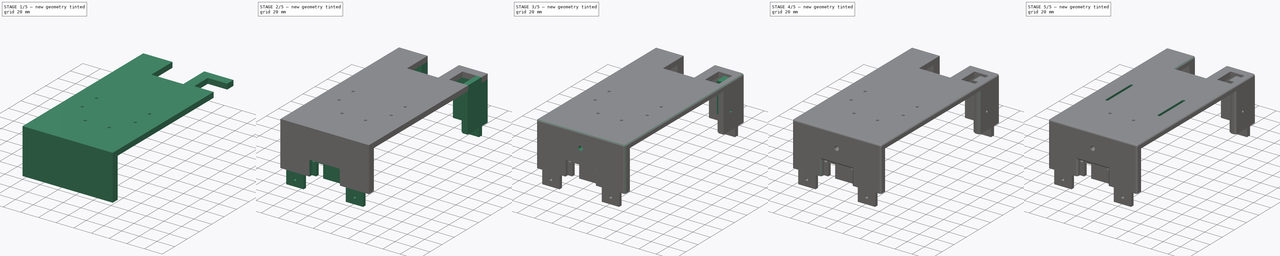
[diagram: build sequence overview — one tinted view per stage of 5, left to right]
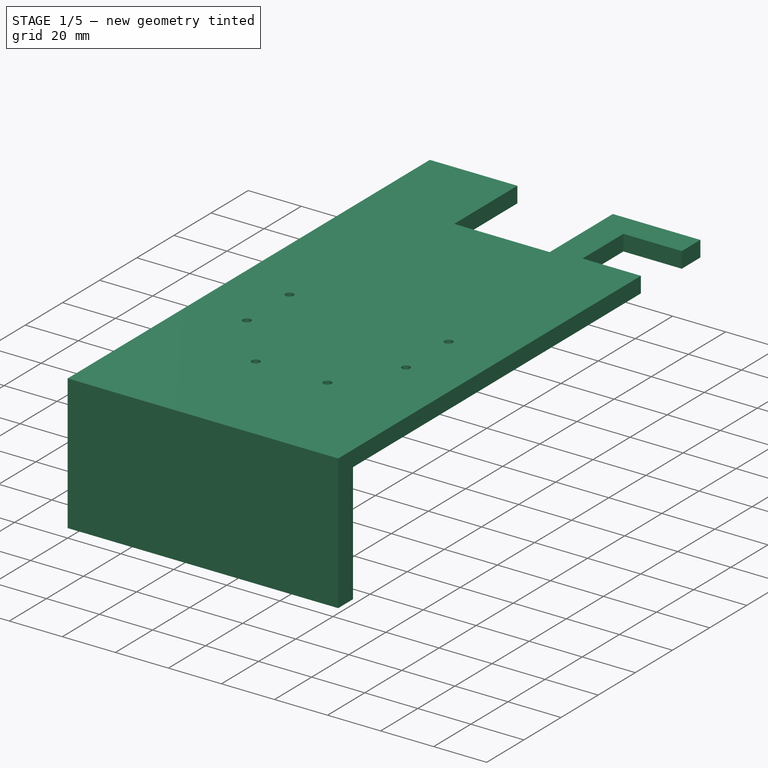
[diagram: stage 1 of 5 — iso view after this stage's code; geometry added in this stage tinted green]
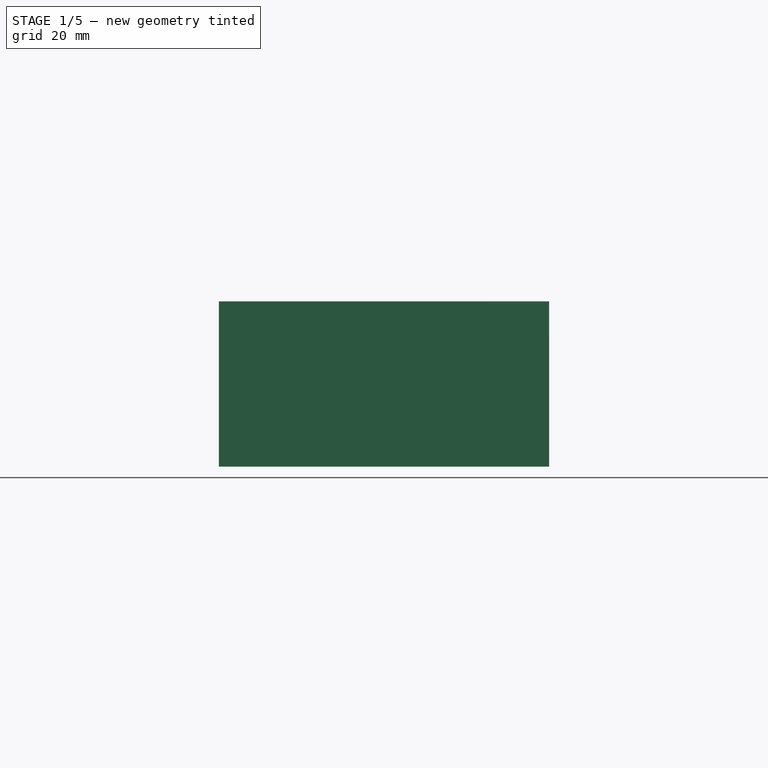
[diagram: stage 1 of 5 — front view after this stage's code; geometry added in this stage tinted green]
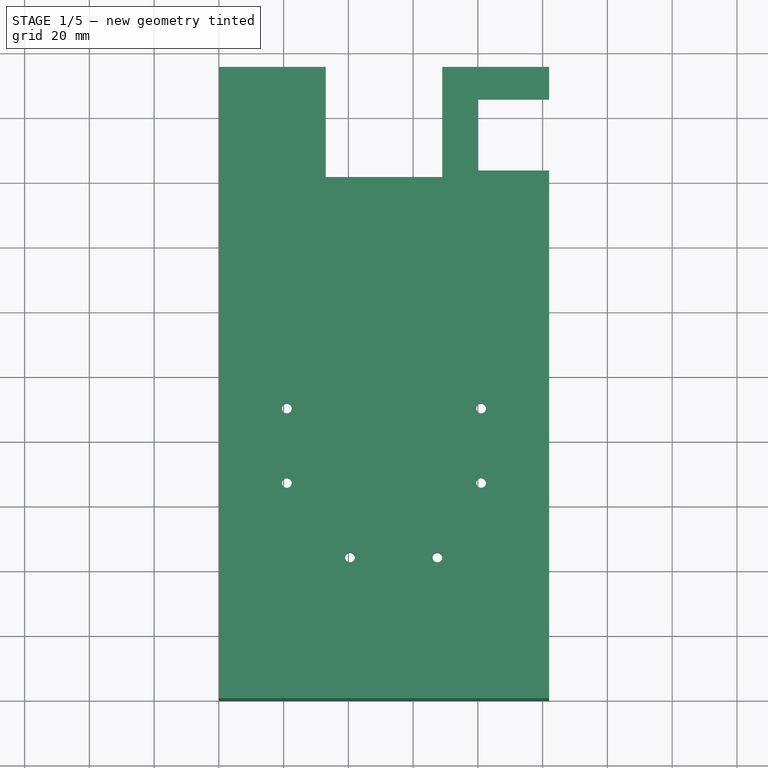
[diagram: stage 1 of 5 — top view after this stage's code; geometry added in this stage tinted green]
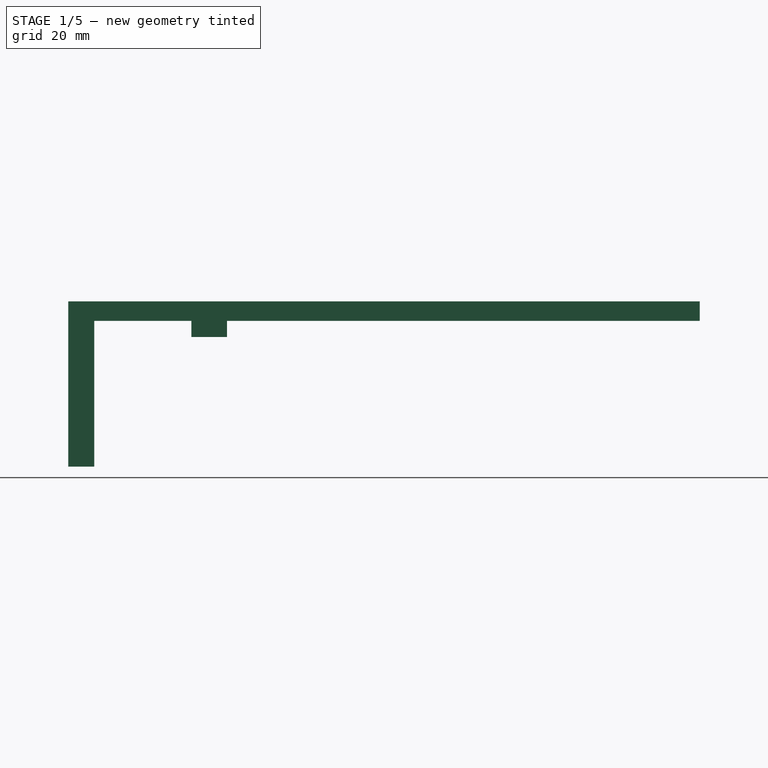
[diagram: stage 1 of 5 — right view after this stage's code; geometry added in this stage tinted green]
FCSTD DOCUMENT  (FreeCAD 0.20R29603 (Git))
Label: PipeScan Top
License: All rights reserved
LicenseURL: http://en.wikipedia.org/wiki/All_rights_reserved
objects: Sketcher::SketchObject×19, PartDesign::Fillet×14, PartDesign::Pocket×10, PartDesign::Pad×8, PartDesign::Body×1
note: 84 computed .brp shape members not serialized (recipe doc carries the construction recipe); baked Part::Feature solids carry a one-line shape summary decoded from their .brp

FEATURE [Sketcher::SketchObject] Sketch
  FullyConstrained = true
  MapMode = 5
  Support = -> [XY_Plane]
  sketch-geometry (8):
    g0: LineSegment StartX=0 StartY=0 StartZ=0 EndX=102 EndY=0 EndZ=0
    g1: LineSegment StartX=102 StartY=0 StartZ=0 EndX=102 EndY=195 EndZ=0
    g2: LineSegment StartX=102 StartY=195 StartZ=0 EndX=69 EndY=195 EndZ=0
    g3: LineSegment StartX=69 StartY=195 StartZ=0 EndX=69 EndY=161 EndZ=0
    g4: LineSegment StartX=69 StartY=161 StartZ=0 EndX=33 EndY=161 EndZ=0
    g5: LineSegment StartX=33 StartY=161 StartZ=0 EndX=33 EndY=195 EndZ=0
    g6: LineSegment StartX=33 StartY=195 StartZ=0 EndX=0 EndY=195 EndZ=0
    g7: LineSegment StartX=0 StartY=195 StartZ=0 EndX=0 EndY=0 EndZ=0
  constraints (23):
    c: Horizontal(g0)
    c: Coincident(g0,g1)
    c: Vertical(g1)
    c: Coincident(g1,g2)
    c: Horizontal(g2)
    c: Coincident(g2,g3)
    c: Vertical(g3)
    c: Coincident(g3,g4)
    c: Horizontal(g4)
    c: Coincident(g4,g5)
    c: Vertical(g5)
    c: Coincident(g5,g6)
    c: Horizontal(g6)
    c: Coincident(g6,g7)
    c: Coincident(g7,g0)
    c: Vertical(g7)
    c: Equal(g1,g7)
    c: Equal(g6,g2)
    c: DistanceY(g1,g1) = 195
    c: DistanceX(g0,g0) = 102
    c: DistanceX(g4,g4) = 36
    c: DistanceY(g3,g3) = 34
    c: Coincident(g0,g-1)
FEATURE [PartDesign::Pad] Pad  label="Estrutura"
  Direction = (0,0,1)
  Length = 6
  Length2 = 10
  Profile = -> Sketch
  ReferenceAxis = -> Sketch [N_Axis]
  Type = 0
FEATURE [Sketcher::SketchObject] Sketch001
  ExternalGeometry = -> [Pad]
  FullyConstrained = true
  MapMode = 5
  Placement = pos=(0,0,0) rot=(1,0,0;3.14159rad)
  Support = -> [Pad]
  sketch-geometry (8):
    g0: LineSegment StartX=35 StartY=-38 StartZ=0 EndX=46 EndY=-38 EndZ=0
    g1: LineSegment StartX=46 StartY=-38 StartZ=0 EndX=46 EndY=-49 EndZ=0
    g2: LineSegment StartX=46 StartY=-49 StartZ=0 EndX=35 EndY=-49 EndZ=0
    g3: LineSegment StartX=35 StartY=-49 StartZ=0 EndX=35 EndY=-38 EndZ=0
    g4: LineSegment StartX=62 StartY=-38 StartZ=0 EndX=73 EndY=-38 EndZ=0
    g5: LineSegment StartX=73 StartY=-38 StartZ=0 EndX=73 EndY=-49 EndZ=0
    g6: LineSegment StartX=73 StartY=-49 StartZ=0 EndX=62 EndY=-49 EndZ=0
    g7: LineSegment StartX=62 StartY=-49 StartZ=0 EndX=62 EndY=-38 EndZ=0
  constraints (24):
    c: Coincident(g0,g1)
    c: Coincident(g1,g2)
    c: Coincident(g2,g3)
    c: Coincident(g3,g0)
    c: Horizontal(g0)
    c: Horizontal(g2)
    c: Vertical(g1)
    c: Vertical(g3)
    c: Coincident(g4,g5)
    c: Coincident(g5,g6)
    c: Coincident(g6,g7)
    c: Coincident(g7,g4)
    c: Horizontal(g4)
    c: Horizontal(g6)
    c: Vertical(g5)
    c: Vertical(g7)
    c: DistanceX(g2,g2) = 11
    c: DistanceY(g1,g1) = 11
    c: Equal(g6,g2)
    c: Equal(g1,g7)
    c: DistanceX(g-1,g0) = 35
    c: DistanceY(g0,g-1) = 38
    c: DistanceY(g4,g-1) = 38
    c: DistanceX(g4,g-3) = 29
FEATURE [PartDesign::Pad] Pad001  label="Base Parafuso"
  BaseFeature = -> Pad
  Direction = (0,0,-1)
  Length = 5
  Length2 = 10
  Profile = -> Sketch001
  ReferenceAxis = -> Sketch001 [N_Axis]
  Type = 0
FEATURE [Sketcher::SketchObject] Sketch002
  FullyConstrained = true
  MapMode = 5
  Support = -> [XY_Plane]
FEATURE [Sketcher::SketchObject] Sketch003
  ExternalGeometry = -> [Pad001]
  FullyConstrained = true
  MapMode = 5
  Placement = pos=(0,0,-5) rot=(1,0,0;3.14159rad)
  Support = -> [Pad001]
  sketch-geometry (2):
    g0: Circle CenterX=40.5 CenterY=-43.5 CenterZ=0 NormalX=0 NormalY=0 NormalZ=1 AngleXU=0 Radius=1.5
    g1: Circle CenterX=67.5 CenterY=-43.5 CenterZ=0 NormalX=0 NormalY=0 NormalZ=1 AngleXU=0 Radius=1.5
  constraints (6):
    c: Radius(g0) = 1.5
    c: DistanceX(g-3,g0) = 5.5
    c: DistanceY(g-3,g0) = 5.5
    c: Radius(g1) = 1.5
    c: DistanceX(g-4,g1) = 5.5
    c: DistanceY(g-4,g1) = 5.5
FEATURE [PartDesign::Pocket] Pocket  label="Furo Parafuso"
  BaseFeature = -> Pad001
  Direction = (0,0,1)
  Length = 5
  Length2 = 5
  Profile = -> Sketch003
  ReferenceAxis = -> Sketch003 [N_Axis]
  Type = 1
FEATURE [Sketcher::SketchObject] Sketch004
  ExternalGeometry = -> [Pocket]
  FullyConstrained = true
  MapMode = 5
  Placement = pos=(0,0,6) rot=(0,0,1;0rad)
  Support = -> [Pocket]
  sketch-geometry (4):
    g0: Circle CenterX=21 CenterY=89.5 CenterZ=0 NormalX=0 NormalY=0 NormalZ=1 AngleXU=0 Radius=1.5
    g1: Circle CenterX=81 CenterY=89.5 CenterZ=0 NormalX=0 NormalY=0 NormalZ=1 AngleXU=0 Radius=1.5
    g2: Circle CenterX=81 CenterY=66.5 CenterZ=0 NormalX=0 NormalY=0 NormalZ=1 AngleXU=0 Radius=1.5
    g3: Circle CenterX=21 CenterY=66.5 CenterZ=0 NormalX=0 NormalY=0 NormalZ=1 AngleXU=0 Radius=1.5
  constraints (12):
    c: Equal(g3,g0)
    c: Equal(g0,g1)
    c: Equal(g1,g2)
    c: Radius(g0) = 1.5
    c: DistanceX(g-1,g0) = 21
    c: DistanceX(g-1,g3) = 21
    c: DistanceX(g1,g-3) = 21
    c: DistanceX(g2,g-3) = 21
    c: DistanceY(g3,g0) = 23
    c: DistanceY(g2,g1) = 23
    c: DistanceY(g-1,g3) = 66.5
    c: DistanceY(g-3,g2) = 66.5
FEATURE [PartDesign::Pocket] Pocket001  label="Parafusos ESP"
  BaseFeature = -> Pocket
  Direction = (0,0,-1)
  Length = 6
  Length2 = 5
  Profile = -> Sketch004
  ReferenceAxis = -> Sketch004 [N_Axis]
  Type = 0
FEATURE [Sketcher::SketchObject] Sketch005
  ExternalGeometry = -> [Pocket001]
  FullyConstrained = true
  MapMode = 5
  Placement = pos=(0,0,6) rot=(0,0,1;0rad)
  Support = -> [Pocket001]
  sketch-geometry (6):
    g0: LineSegment StartX=102 StartY=185 StartZ=0 EndX=80 EndY=185 EndZ=0
    g1: LineSegment StartX=80 StartY=185 StartZ=0 EndX=80 EndY=163 EndZ=0
    g2: LineSegment StartX=80 StartY=163 StartZ=0 EndX=102 EndY=163 EndZ=0
    g3: LineSegment StartX=102 StartY=163 StartZ=0 EndX=102 EndY=168 EndZ=0
    g4: LineSegment StartX=102 StartY=180 StartZ=0 EndX=102 EndY=185 EndZ=0
    g5: LineSegment StartX=102 StartY=168 StartZ=0 EndX=102 EndY=180 EndZ=0
  constraints (18):
    c: Coincident(g0,g1)
    c: Vertical(g1)
    c: Coincident(g1,g2)
    c: Coincident(g2,g3)
    c: Coincident(g4,g0)
    c: Horizontal(g0)
    c: Horizontal(g2)
    c: Vertical(g3)
    c: Vertical(g4)
    c: Equal(g3,g4)
    c: DistanceY(g2,g3) = 5
    c: DistanceX(g2,g2) = 22
    c: Equal(g2,g0)
    c: PointOnObject(g0,g-3)
    c: DistanceY(g0,g-3) = 10
    c: Coincident(g5,g3)
    c: Coincident(g5,g4)
    c: DistanceY(g1,g1) = 22
FEATURE [PartDesign::Pocket] Pocket002  label="Furo Encaixe "
  BaseFeature = -> Pocket001
  Direction = (0,0,-1)
  Length = 6
  Length2 = 5
  Profile = -> Sketch005
  ReferenceAxis = -> Sketch005 [N_Axis]
  Type = 0
FEATURE [Sketcher::SketchObject] Sketch006
  FullyConstrained = true
  MapMode = 5
  Placement = pos=(0,0,0) rot=(1,0,0;3.14159rad)
  Support = -> [Pocket002]
  sketch-geometry (4):
    g0: LineSegment StartX=0 StartY=0 StartZ=0 EndX=102 EndY=0 EndZ=0
    g1: LineSegment StartX=102 StartY=0 StartZ=0 EndX=102 EndY=-8 EndZ=0
    g2: LineSegment StartX=102 StartY=-8 StartZ=0 EndX=0 EndY=-8 EndZ=0
    g3: LineSegment StartX=0 StartY=-8 StartZ=0 EndX=0 EndY=0 EndZ=0
  constraints (11):
    c: Coincident(g0,g1)
    c: Coincident(g1,g2)
    c: Coincident(g2,g3)
    c: Coincident(g3,g0)
    c: Horizontal(g0)
    c: Horizontal(g2)
    c: Vertical(g1)
    c: Vertical(g3)
    c: DistanceY(g1,g1) = 8
    c: DistanceX(g0,g0) = 102
    c: Coincident(g0,g-1)
FEATURE [PartDesign::Pad] Pad002  label="Frente"
  BaseFeature = -> Pocket002
  Direction = (0,0,-1)
  Length = 45
  Length2 = 10
  Profile = -> Sketch006
  ReferenceAxis = -> Sketch006 [N_Axis]
  Type = 0
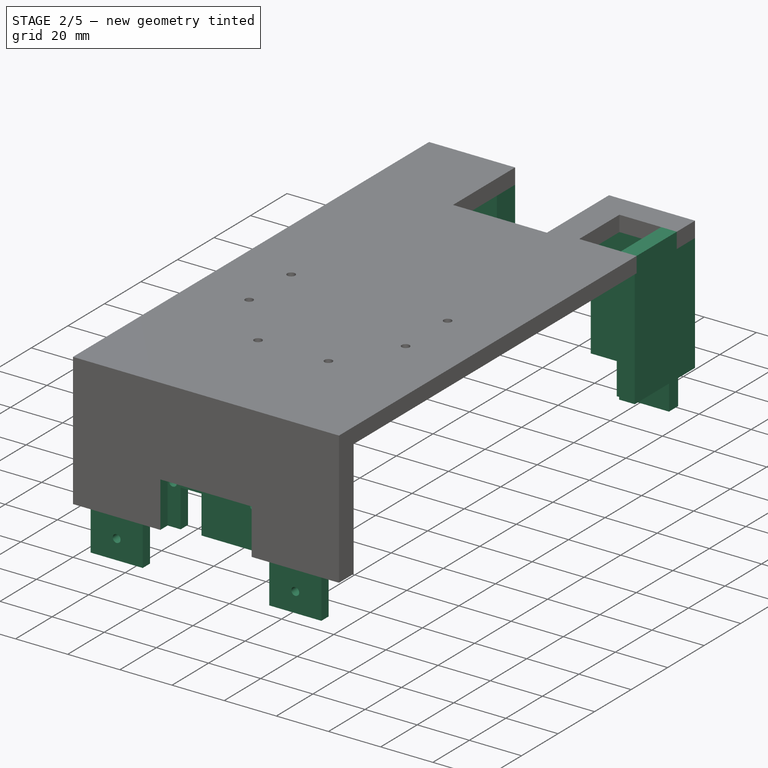
[diagram: stage 2 of 5 — iso view after this stage's code; geometry added in this stage tinted green]
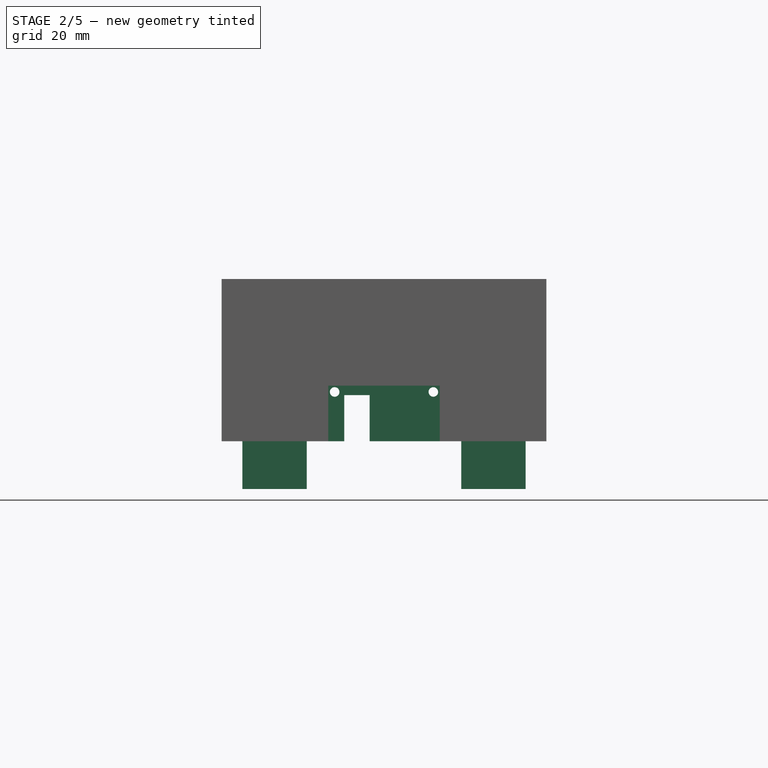
[diagram: stage 2 of 5 — front view after this stage's code; geometry added in this stage tinted green]
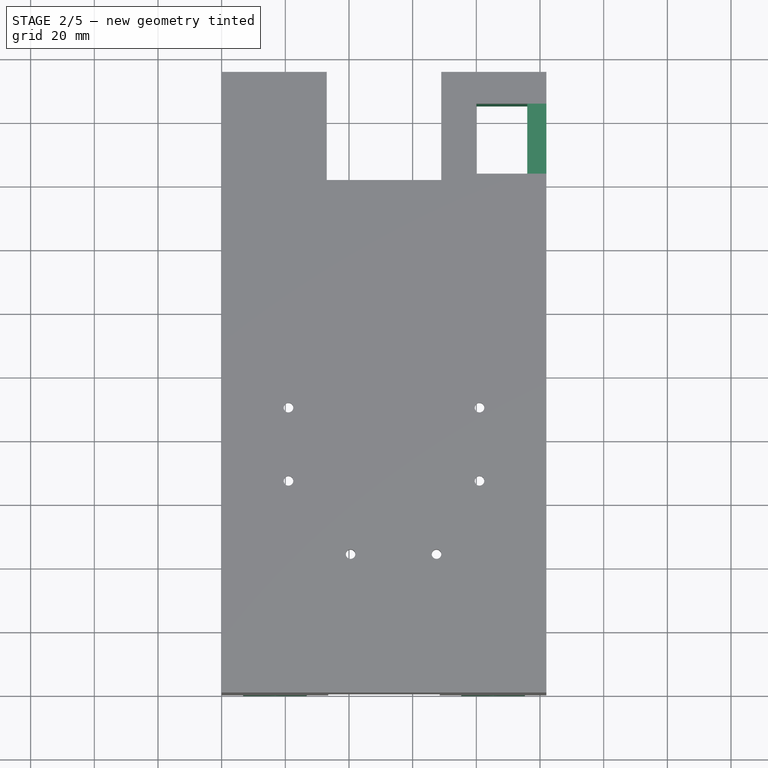
[diagram: stage 2 of 5 — top view after this stage's code; geometry added in this stage tinted green]
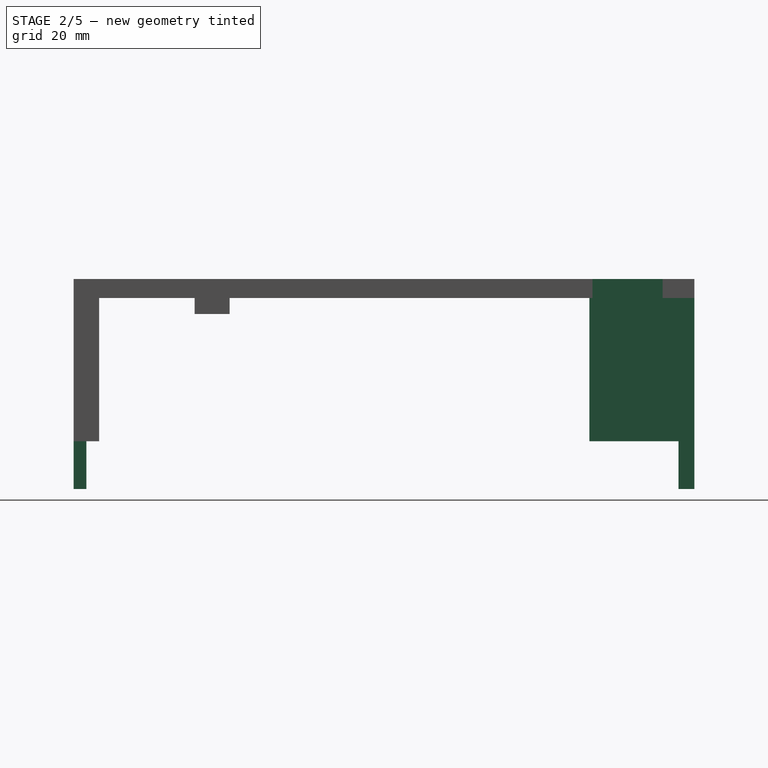
[diagram: stage 2 of 5 — right view after this stage's code; geometry added in this stage tinted green]
FEATURE [Sketcher::SketchObject] Sketch007
  ExternalGeometry = -> [Pad002]
  FullyConstrained = true
  MapMode = 5
  Placement = pos=(0,0,0) rot=(1,0,0;1.5708rad)
  Support = -> [Pad002]
  sketch-geometry (4):
    g0: LineSegment StartX=33.5 StartY=-27.5 StartZ=0 EndX=68.5 EndY=-27.5 EndZ=0
    g1: LineSegment StartX=68.5 StartY=-27.5 StartZ=0 EndX=68.5 EndY=-45 EndZ=0
    g2: LineSegment StartX=68.5 StartY=-45 StartZ=0 EndX=33.5 EndY=-45 EndZ=0
    g3: LineSegment StartX=33.5 StartY=-45 StartZ=0 EndX=33.5 EndY=-27.5 EndZ=0
  constraints (12):
    c: Coincident(g0,g1)
    c: Coincident(g1,g2)
    c: Coincident(g2,g3)
    c: Coincident(g3,g0)
    c: Horizontal(g0)
    c: Horizontal(g2)
    c: Vertical(g1)
    c: Vertical(g3)
    c: DistanceX(g0,g0) = 35
    c: DistanceY(g3,g3) = 17.5
    c: PointOnObject(g1,g-3)
    c: DistanceX(g-3,g2) = 33.5
FEATURE [PartDesign::Pocket] Pocket003  label="Câmera"
  BaseFeature = -> Pad002
  Direction = (0,1,-2e-16)
  Length = 4
  Length2 = 5
  Profile = -> Sketch007
  ReferenceAxis = -> Sketch007 [N_Axis]
  Type = 0
FEATURE [Sketcher::SketchObject] Sketch008
  ExternalGeometry = -> [Pocket003]
  FullyConstrained = true
  MapMode = 5
  Placement = pos=(0,4,-9e-16) rot=(1,0,0;1.5708rad)
  Support = -> [Pocket003]
  sketch-geometry (6):
    g0: Circle CenterX=35.5 CenterY=-29.5 CenterZ=0 NormalX=0 NormalY=0 NormalZ=1 AngleXU=0 Radius=1.5
    g1: Circle CenterX=66.5 CenterY=-29.5 CenterZ=0 NormalX=0 NormalY=0 NormalZ=1 AngleXU=0 Radius=1.5
    g2: LineSegment StartX=38.5 StartY=-30.5 StartZ=0 EndX=46.5 EndY=-30.5 EndZ=0
    g3: LineSegment StartX=46.5 StartY=-30.5 StartZ=0 EndX=46.5 EndY=-45 EndZ=0
    g4: LineSegment StartX=46.5 StartY=-45 StartZ=0 EndX=38.5 EndY=-45 EndZ=0
    g5: LineSegment StartX=38.5 StartY=-45 StartZ=0 EndX=38.5 EndY=-30.5 EndZ=0
  constraints (18):
    c: Equal(g0,g1)
    c: Radius(g1) = 1.5
    c: DistanceX(g-3,g0) = 2
    c: DistanceY(g0,g-3) = 2
    c: DistanceX(g1,g-3) = 2
    c: DistanceY(g1,g-3) = 2
    c: Coincident(g2,g3)
    c: Coincident(g3,g4)
    c: Coincident(g4,g5)
    c: Coincident(g5,g2)
    c: Horizontal(g2)
    c: Horizontal(g4)
    c: Vertical(g3)
    c: Vertical(g5)
    c: PointOnObject(g3,g-5)
    c: DistanceY(g2,g-4) = 3
    c: DistanceX(g-5,g4) = 5
    c: DistanceX(g2,g2) = 8
FEATURE [PartDesign::Pocket] Pocket004  label="Furos Câmera"
  BaseFeature = -> Pocket003
  Direction = (0,1,-2e-16)
  Length = 5
  Length2 = 5
  Profile = -> Sketch008
  ReferenceAxis = -> Sketch008 [N_Axis]
  Type = 0
FEATURE [Sketcher::SketchObject] Sketch009
  ExternalGeometry = -> [Pocket004]
  FullyConstrained = true
  MapMode = 5
  Placement = pos=(0,0,-45) rot=(1,0,0;3.14159rad)
  Support = -> [Pocket004]
  sketch-geometry (8):
    g0: LineSegment StartX=6.75 StartY=0 StartZ=0 EndX=26.75 EndY=0 EndZ=0
    g1: LineSegment StartX=26.75 StartY=0 StartZ=0 EndX=26.75 EndY=-4 EndZ=0
    g2: LineSegment StartX=26.75 StartY=-4 StartZ=0 EndX=6.75 EndY=-4 EndZ=0
    g3: LineSegment StartX=6.75 StartY=-4 StartZ=0 EndX=6.75 EndY=0 EndZ=0
    g4: LineSegment StartX=75.25 StartY=0 StartZ=0 EndX=95.25 EndY=0 EndZ=0
    g5: LineSegment StartX=95.25 StartY=0 StartZ=0 EndX=95.25 EndY=-4 EndZ=0
    g6: LineSegment StartX=95.25 StartY=-4 StartZ=0 EndX=75.25 EndY=-4 EndZ=0
    g7: LineSegment StartX=75.25 StartY=-4 StartZ=0 EndX=75.25 EndY=0 EndZ=0
  constraints (24):
    c: Coincident(g0,g1)
    c: Coincident(g1,g2)
    c: Coincident(g2,g3)
    c: Coincident(g3,g0)
    c: Horizontal(g0)
    c: Horizontal(g2)
    c: Vertical(g1)
    c: Vertical(g3)
    c: Coincident(g4,g5)
    c: Coincident(g5,g6)
    c: Coincident(g6,g7)
    c: Coincident(g7,g4)
    c: Horizontal(g4)
    c: Horizontal(g6)
    c: Vertical(g5)
    c: Vertical(g7)
    c: Equal(g6,g2)
    c: Equal(g7,g1)
    c: DistanceX(g2,g2) = 20
    c: DistanceY(g3,g3) = 4
    c: PointOnObject(g0,g-1)
    c: PointOnObject(g4,g-1)
    c: DistanceX(g-1,g0) = 6.75
    c: DistanceX(g4,g-4) = 6.75
FEATURE [PartDesign::Pad] Pad003  label="Encaixes frontal"
  BaseFeature = -> Pocket004
  Direction = (0,0,-1)
  Length = 15
  Length2 = 10
  Profile = -> Sketch009
  ReferenceAxis = -> Sketch009 [N_Axis]
  Type = 0
FEATURE [Sketcher::SketchObject] Sketch010
  ExternalGeometry = -> [Pad003]
  FullyConstrained = true
  MapMode = 5
  Placement = pos=(0,0,0) rot=(1,0,0;1.5708rad)
  Support = -> [Pad003]
  sketch-geometry (2):
    g0: Circle CenterX=16.75 CenterY=-52.5 CenterZ=0 NormalX=0 NormalY=0 NormalZ=1 AngleXU=0 Radius=1.5
    g1: Circle CenterX=85.25 CenterY=-52.5 CenterZ=0 NormalX=0 NormalY=0 NormalZ=1 AngleXU=0 Radius=1.5
  constraints (7):
    c: Equal(g1,g0)
    c: Radius(g0) = 1.5
    c: DistanceX(g-3,g0) = 10
    c: DistanceY(g-3,g-3) = 15
    c: DistanceY(g-3,g0) = 7.5
    c: DistanceX(g-4,g1) = 10
    c: DistanceY(g-4,g1) = 7.5
FEATURE [PartDesign::Pocket] Pocket005  label="Parafuso Encaixe"
  BaseFeature = -> Pad003
  Direction = (0,1,-2e-16)
  Length = 4
  Length2 = 5
  Profile = -> Sketch010
  ReferenceAxis = -> Sketch010 [N_Axis]
  Type = 0
FEATURE [Sketcher::SketchObject] Sketch011
  ExternalGeometry = -> [Pocket005]
  FullyConstrained = true
  MapMode = 5
  Placement = pos=(0,0,0) rot=(1,0,0;3.14159rad)
  Support = -> [Pocket005]
  sketch-geometry (12):
    g0: LineSegment StartX=96 StartY=-162 StartZ=0 EndX=102 EndY=-162 EndZ=0
    g1: LineSegment StartX=102 StartY=-162 StartZ=0 EndX=102 EndY=-195 EndZ=0
    g2: LineSegment StartX=102 StartY=-195 StartZ=0 EndX=69 EndY=-195 EndZ=0
    g3: LineSegment StartX=69 StartY=-195 StartZ=0 EndX=69 EndY=-185 EndZ=0
    g4: LineSegment StartX=69 StartY=-185 StartZ=0 EndX=96 EndY=-185 EndZ=0
    g5: LineSegment StartX=96 StartY=-185 StartZ=0 EndX=96 EndY=-162 EndZ=0
    g6: LineSegment StartX=0 StartY=-162 StartZ=0 EndX=6 EndY=-162 EndZ=0
    g7: LineSegment StartX=6 StartY=-162 StartZ=0 EndX=6 EndY=-185 EndZ=0
    g8: LineSegment StartX=6 StartY=-185 StartZ=0 EndX=33 EndY=-185 EndZ=0
    g9: LineSegment StartX=33 StartY=-185 StartZ=0 EndX=33 EndY=-195 EndZ=0
    g10: LineSegment StartX=33 StartY=-195 StartZ=0 EndX=0 EndY=-195 EndZ=0
    g11: LineSegment StartX=0 StartY=-195 StartZ=0 EndX=0 EndY=-162 EndZ=0
  constraints (33):
    c: Horizontal(g0)
    c: Coincident(g0,g1)
    c: Vertical(g1)
    c: Coincident(g1,g2)
    c: Coincident(g2,g3)
    c: Vertical(g3)
    c: Coincident(g3,g4)
    c: Horizontal(g4)
    c: Coincident(g4,g5)
    c: Coincident(g5,g0)
    c: Vertical(g5)
    c: Coincident(g1,g-3)
    c: Equal(g1,g2)
    c: Coincident(g2,g-3)
    c: PointOnObject(g-4,g4)
    c: DistanceX(g0,g0) = 6
    c: Horizontal(g6)
    c: Coincident(g6,g7)
    c: Vertical(g7)
    c: Coincident(g7,g8)
    c: Horizontal(g8)
    c: Coincident(g8,g9)
    c: Vertical(g9)
    c: Coincident(g9,g10)
    c: Horizontal(g10)
    c: Coincident(g10,g11)
    c: Coincident(g11,g6)
    c: Vertical(g11)
    c: Coincident(g10,g-5)
    c: Equal(g10,g2)
    c: Equal(g9,g3)
    c: Equal(g6,g0)
    c: Equal(g11,g10)
FEATURE [PartDesign::Pad] Pad004  label="Atrás"
  BaseFeature = -> Pocket005
  Direction = (0,0,-1)
  Length = 45
  Length2 = 10
  Profile = -> Sketch011
  ReferenceAxis = -> Sketch011 [N_Axis]
  Type = 0
FEATURE [Sketcher::SketchObject] Sketch012
  ExternalGeometry = -> [Pad004]
  FullyConstrained = true
  MapMode = 5
  Placement = pos=(0,185,0) rot=(1,0,0;1.5708rad)
  Support = -> [Pad004]
  sketch-geometry (4):
    g0: LineSegment StartX=96 StartY=6 StartZ=0 EndX=102 EndY=6 EndZ=0
    g1: LineSegment StartX=102 StartY=6 StartZ=0 EndX=102 EndY=0 EndZ=0
    g2: LineSegment StartX=102 StartY=0 StartZ=0 EndX=96 EndY=0 EndZ=0
    g3: LineSegment StartX=96 StartY=0 StartZ=0 EndX=96 EndY=6 EndZ=0
  constraints (9):
    c: Coincident(g0,g1)
    c: Coincident(g1,g2)
    c: Coincident(g2,g3)
    c: Coincident(g3,g0)
    c: Horizontal(g0)
    c: Vertical(g3)
    c: Coincident(g1,g-3)
    c: Coincident(g0,g-3)
    c: Coincident(g2,g-4)
FEATURE [PartDesign::Pad] Pad005  label="Detalhe"
  BaseFeature = -> Pad004
  Direction = (0,-1,2e-16)
  Length = 22
  Length2 = 10
  Profile = -> Sketch012
  ReferenceAxis = -> Sketch012 [N_Axis]
  Type = 0
FEATURE [Sketcher::SketchObject] Sketch013
  ExternalGeometry = -> [Pad005]
  FullyConstrained = true
  MapMode = 5
  Placement = pos=(0,0,-45) rot=(1,0,0;3.14159rad)
  Support = -> [Pad005]
  sketch-geometry (8):
    g0: LineSegment StartX=6.5 StartY=-190 StartZ=0 EndX=26.5 EndY=-190 EndZ=0
    g1: LineSegment StartX=26.5 StartY=-190 StartZ=0 EndX=26.5 EndY=-195 EndZ=0
    g2: LineSegment StartX=26.5 StartY=-195 StartZ=0 EndX=6.5 EndY=-195 EndZ=0
    g3: LineSegment StartX=6.5 StartY=-195 StartZ=0 EndX=6.5 EndY=-190 EndZ=0
    g4: LineSegment StartX=75.5 StartY=-190 StartZ=0 EndX=95.5 EndY=-190 EndZ=0
    g5: LineSegment StartX=95.5 StartY=-190 StartZ=0 EndX=95.5 EndY=-195 EndZ=0
    g6: LineSegment StartX=95.5 StartY=-195 StartZ=0 EndX=75.5 EndY=-195 EndZ=0
    g7: LineSegment StartX=75.5 StartY=-195 StartZ=0 EndX=75.5 EndY=-190 EndZ=0
  constraints (24):
    c: Coincident(g0,g1)
    c: Coincident(g1,g2)
    c: Coincident(g2,g3)
    c: Coincident(g3,g0)
    c: Horizontal(g0)
    c: Horizontal(g2)
    c: Vertical(g1)
    c: Vertical(g3)
    c: Coincident(g4,g5)
    c: Coincident(g5,g6)
    c: Coincident(g6,g7)
    c: Coincident(g7,g4)
    c: Horizontal(g4)
    c: Horizontal(g6)
    c: Vertical(g5)
    c: Vertical(g7)
    c: DistanceX(g0,g0) = 20
    c: DistanceY(g1,g1) = 5
    c: PointOnObject(g1,g-4)
    c: PointOnObject(g6,g-3)
    c: DistanceX(g-4,g2) = 6.5
    c: DistanceX(g-3,g6) = 6.5
    c: Equal(g5,g1)
    c: Equal(g4,g0)
FEATURE [PartDesign::Pad] Pad006  label="Encaixe Traseiro"
  BaseFeature = -> Pad005
  Direction = (0,0,-1)
  Length = 15
  Length2 = 10
  Profile = -> Sketch013
  ReferenceAxis = -> Sketch013 [N_Axis]
  Type = 0
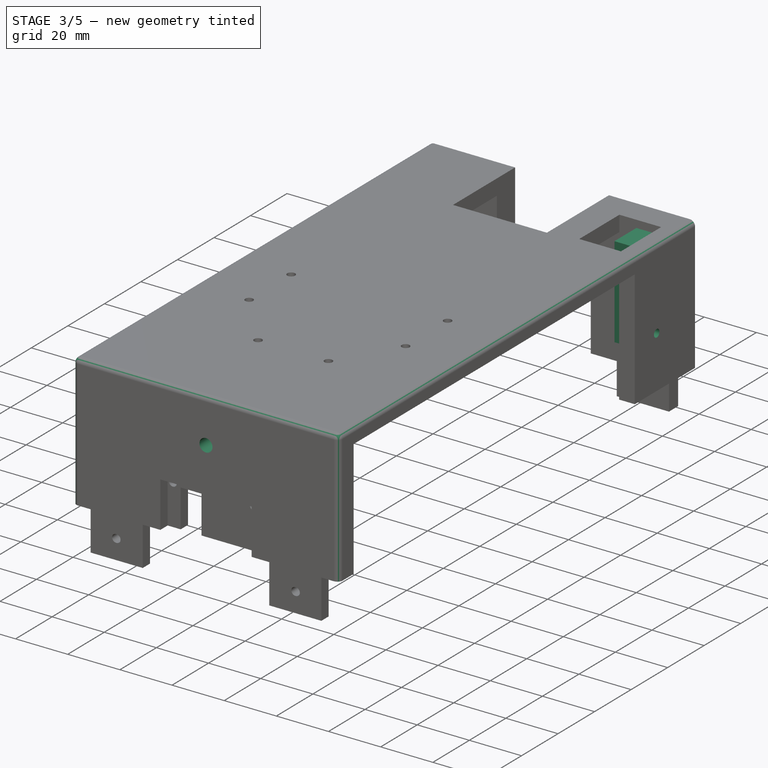
[diagram: stage 3 of 5 — iso view after this stage's code; geometry added in this stage tinted green]
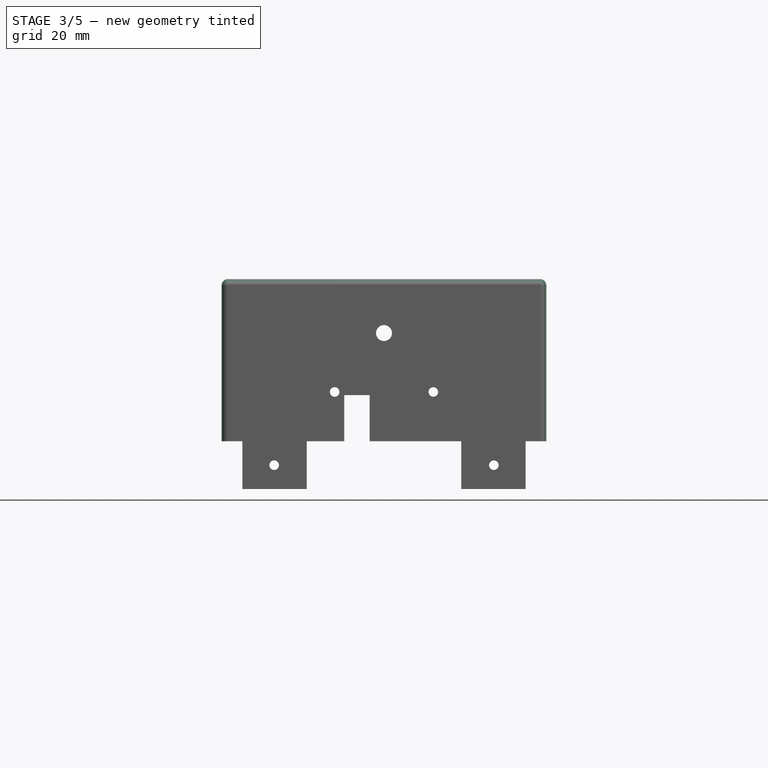
[diagram: stage 3 of 5 — front view after this stage's code; geometry added in this stage tinted green]
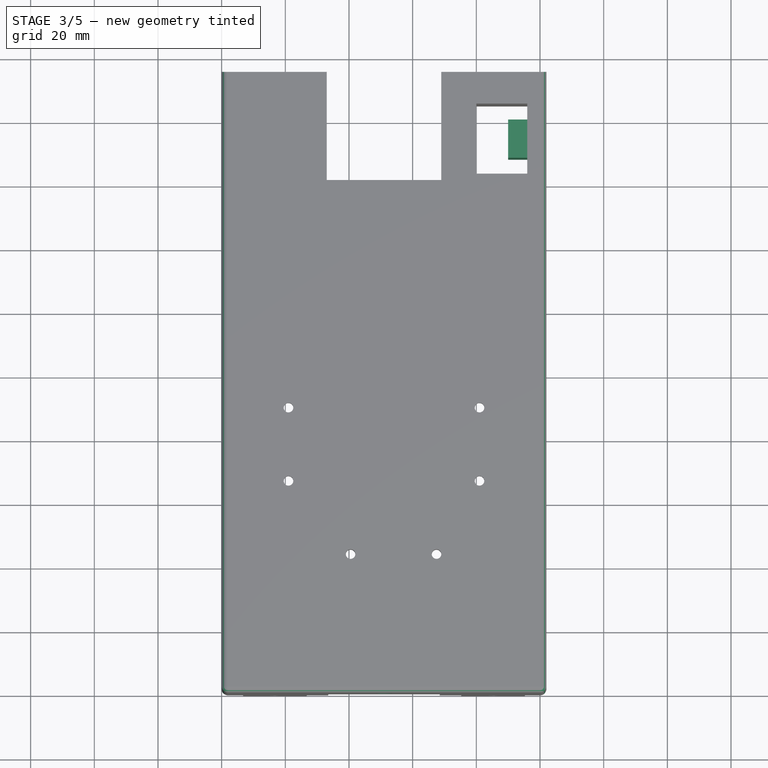
[diagram: stage 3 of 5 — top view after this stage's code; geometry added in this stage tinted green]
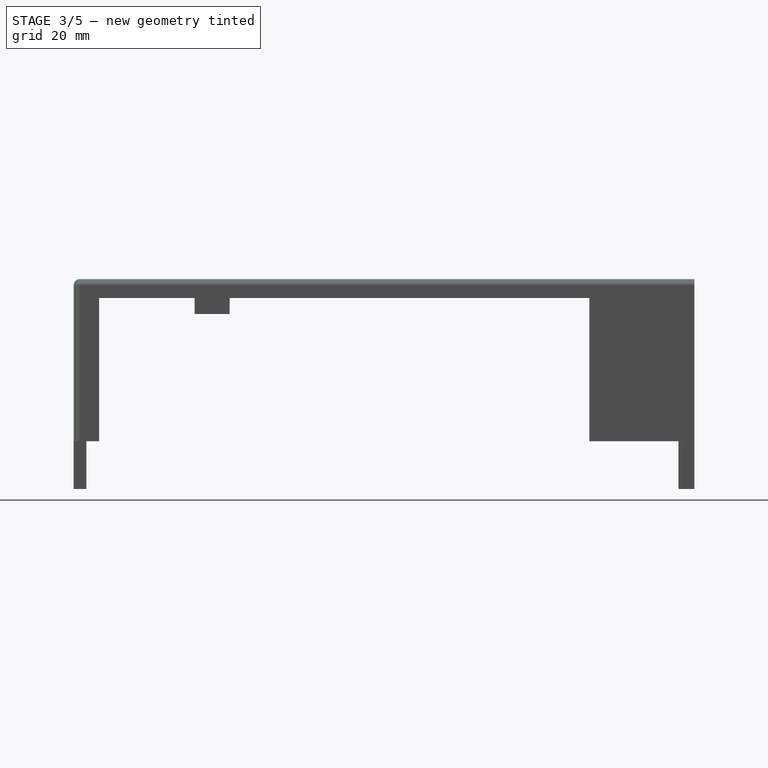
[diagram: stage 3 of 5 — right view after this stage's code; geometry added in this stage tinted green]
FEATURE [Sketcher::SketchObject] Sketch014
  ExternalGeometry = -> [Pad006]
  FullyConstrained = true
  MapMode = 5
  Placement = pos=(0,195,0) rot=(0,0.707107,0.707107;3.14159rad)
  Support = -> [Pad006]
  sketch-geometry (2):
    g0: Circle CenterX=-85.5 CenterY=-52.5 CenterZ=0 NormalX=0 NormalY=0 NormalZ=1 AngleXU=0 Radius=1.5
    g1: Circle CenterX=-16.5 CenterY=-52.5 CenterZ=0 NormalX=0 NormalY=0 NormalZ=1 AngleXU=0 Radius=1.5
  constraints (6):
    c: Equal(g0,g1)
    c: Radius(g0) = 1.5
    c: DistanceX(g-4,g0) = 10
    c: DistanceY(g-4,g0) = 7.5
    c: DistanceX(g-3,g1) = 10
    c: DistanceY(g-3,g1) = 7.5
FEATURE [PartDesign::Pocket] Pocket006  label="Parafuso Traiseiro"
  BaseFeature = -> Pad006
  Direction = (0,-1,2e-16)
  Length = 5
  Length2 = 5
  Profile = -> Sketch014
  ReferenceAxis = -> Sketch014 [N_Axis]
  Type = 1
FEATURE [Sketcher::SketchObject] Sketch015  label="Parafuso Encaixe Traseiro"
  ExternalGeometry = -> [Pocket006]
  FullyConstrained = true
  MapMode = 5
  Placement = pos=(96,0,0) rot=(0.57735,-0.57735,-0.57735;2.0944rad)
  Support = -> [Pocket006]
  sketch-geometry (4):
    g0: LineSegment StartX=-180 StartY=6 StartZ=0 EndX=-168 EndY=6 EndZ=0
    g1: LineSegment StartX=-168 StartY=6 StartZ=0 EndX=-168 EndY=-29 EndZ=0
    g2: LineSegment StartX=-168 StartY=-29 StartZ=0 EndX=-180 EndY=-29 EndZ=0
    g3: LineSegment StartX=-180 StartY=-29 StartZ=0 EndX=-180 EndY=6 EndZ=0
  constraints (12):
    c: Coincident(g0,g1)
    c: Coincident(g1,g2)
    c: Coincident(g2,g3)
    c: Coincident(g3,g0)
    c: Horizontal(g0)
    c: Horizontal(g2)
    c: Vertical(g1)
    c: Vertical(g3)
    c: DistanceX(g-4,g0) = 5
    c: DistanceX(g0,g0) = 12
    c: PointOnObject(g0,g-5)
    c: DistanceY(g1,g1) = 35
FEATURE [PartDesign::Pad] Pad007  label="Apoio Base roda"
  BaseFeature = -> Pocket006
  Direction = (-1,0,0)
  Length = 6
  Length2 = 10
  Profile = -> Sketch015
  ReferenceAxis = -> Sketch015 [N_Axis]
  Type = 0
FEATURE [Sketcher::SketchObject] Sketch016
  ExternalGeometry = -> [Pad007]
  FullyConstrained = true
  MapMode = 5
  Placement = pos=(90,0,0) rot=(0.57735,-0.57735,-0.57735;2.0944rad)
  Support = -> [Pad007]
  sketch-geometry (1):
    g0: Circle CenterX=-174 CenterY=-25 CenterZ=0 NormalX=0 NormalY=0 NormalZ=1 AngleXU=0 Radius=1.5
  constraints (4):
    c: Radius(g0) = 1.5
    c: DistanceY(g0,g-3) = 31
    c: DistanceX(g-3,g-3) = 12
    c: DistanceX(g0,g-3) = 6
FEATURE [PartDesign::Pocket] Pocket007  label="Parafuso Base Vertical"
  BaseFeature = -> Pad007
  Direction = (1,0,0)
  Length = 5
  Length2 = 5
  Profile = -> Sketch016
  ReferenceAxis = -> Sketch016 [N_Axis]
  Type = 1
FEATURE [Sketcher::SketchObject] Sketch018
  FullyConstrained = false
  MapMode = 5
  Placement = pos=(0,0,0) rot=(1,0,0;1.5708rad)
  sketch-geometry (1):
    g0: Circle CenterX=51 CenterY=-11 CenterZ=0 NormalX=0 NormalY=0 NormalZ=1 AngleXU=0 Radius=2.5
  constraints (2):
    c: Radius(g0) = 2.5
    c: DistanceX(g-1,g0) = 51
FEATURE [PartDesign::Pocket] Pocket008  label="LED"
  BaseFeature = -> Pocket007
  Direction = (0,1,-2e-16)
  Length = 8
  Length2 = 5
  Profile = -> Sketch018
  ReferenceAxis = -> Sketch018 [N_Axis]
  Type = 0
FEATURE [PartDesign::Fillet] Fillet
  Base = -> Pocket008 [Edge4]
  BaseFeature = -> Pocket008
  Radius = 2
  SupportTransform = false
  UseAllEdges = false
FEATURE [PartDesign::Fillet] Fillet001
  Base = -> Fillet [Edge7,Edge25]
  BaseFeature = -> Fillet
  Radius = 2
  SupportTransform = false
  UseAllEdges = false
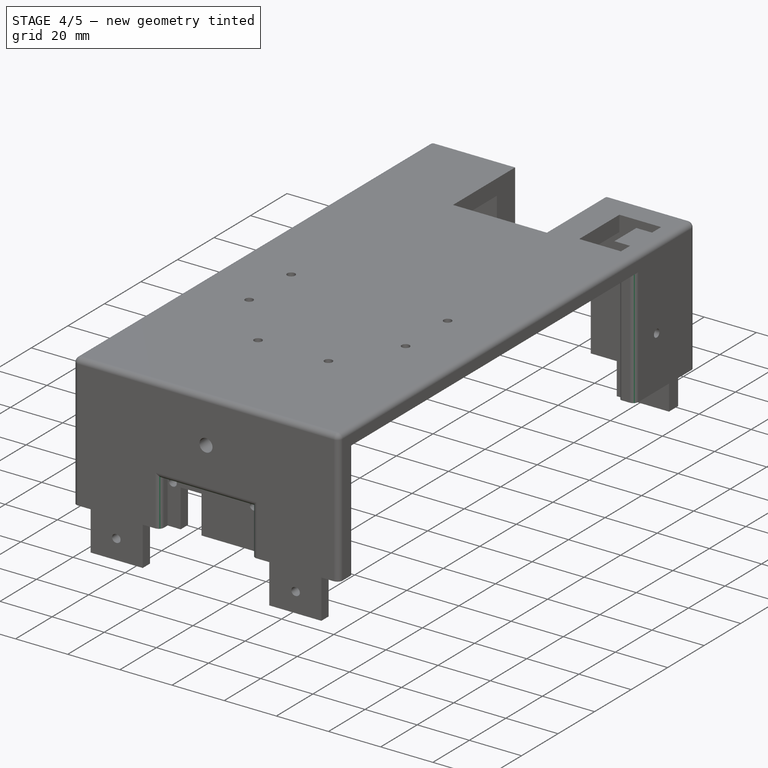
[diagram: stage 4 of 5 — iso view after this stage's code; geometry added in this stage tinted green]
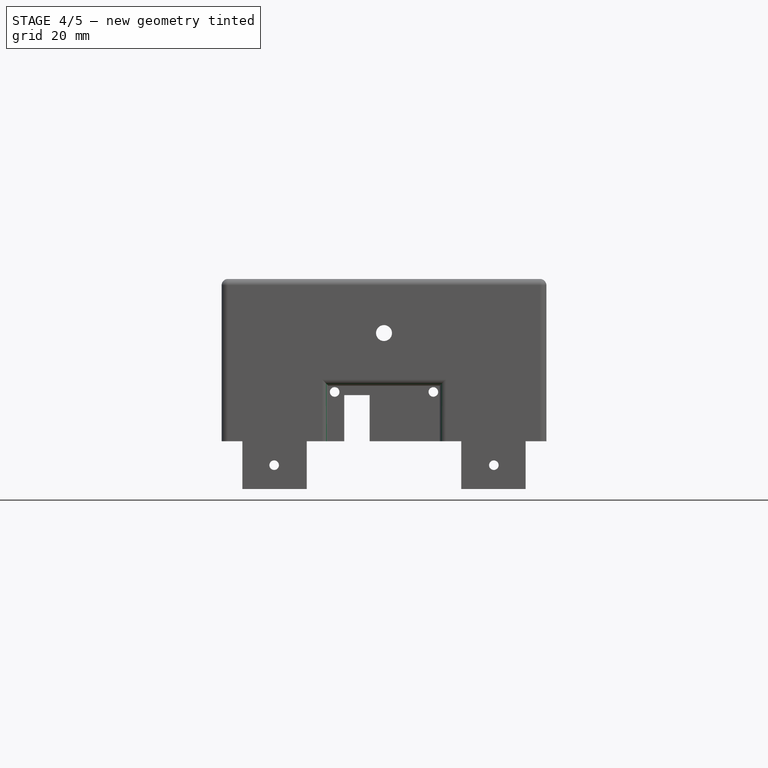
[diagram: stage 4 of 5 — front view after this stage's code; geometry added in this stage tinted green]
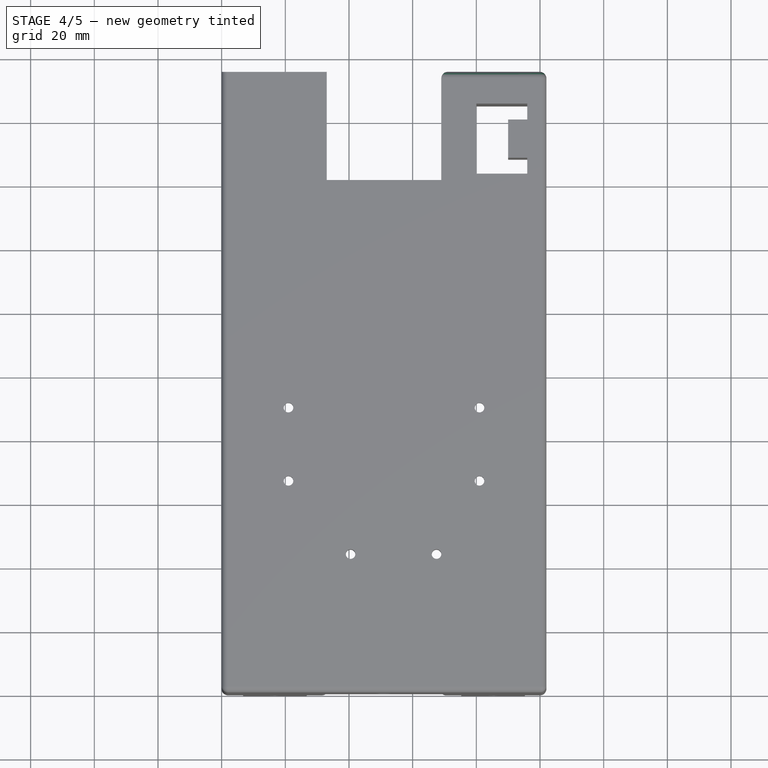
[diagram: stage 4 of 5 — top view after this stage's code; geometry added in this stage tinted green]
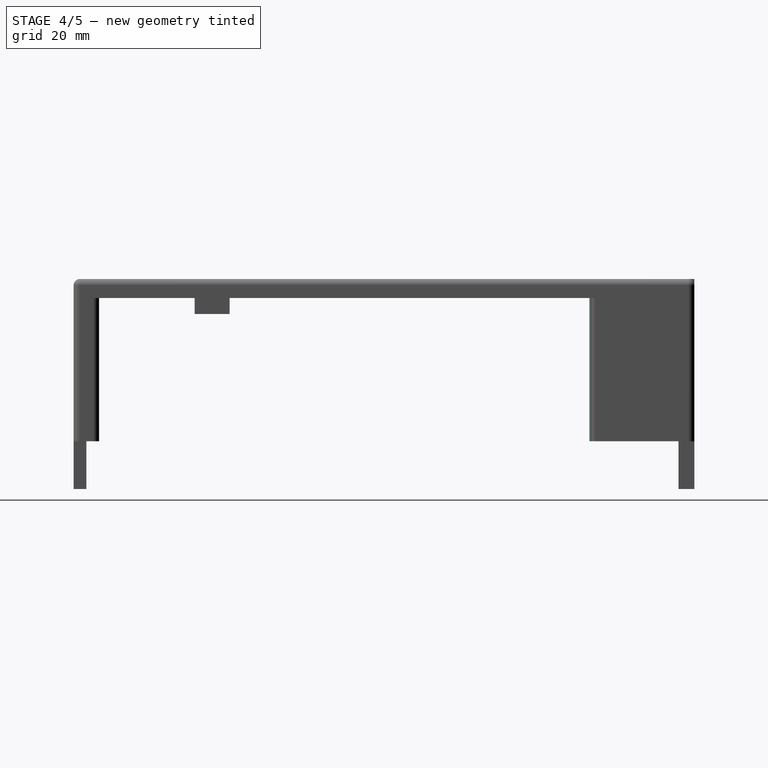
[diagram: stage 4 of 5 — right view after this stage's code; geometry added in this stage tinted green]
FEATURE [PartDesign::Fillet] Fillet002
  Base = -> Fillet001 [Edge157]
  BaseFeature = -> Fillet001
  Radius = 2
  SupportTransform = false
  UseAllEdges = false
FEATURE [PartDesign::Fillet] Fillet003
  Base = -> Fillet002 [Edge25]
  BaseFeature = -> Fillet002
  Radius = 2
  SupportTransform = false
  UseAllEdges = false
FEATURE [PartDesign::Fillet] Fillet004
  Base = -> Fillet003 [Edge152,Edge156]
  BaseFeature = -> Fillet003
  Radius = 2
  SupportTransform = false
  UseAllEdges = false
FEATURE [PartDesign::Fillet] Fillet005
  Base = -> Fillet004 [Edge17]
  BaseFeature = -> Fillet004
  Radius = 2
  SupportTransform = false
  UseAllEdges = false
FEATURE [PartDesign::Fillet] Fillet006
  Base = -> Fillet005 [Edge183]
  BaseFeature = -> Fillet005
  Radius = 2
  SupportTransform = false
  UseAllEdges = false
FEATURE [PartDesign::Fillet] Fillet007
  Base = -> Fillet006 [Edge36]
  BaseFeature = -> Fillet006
  Radius = 1
  SupportTransform = false
  UseAllEdges = false
FEATURE [PartDesign::Fillet] Fillet008
  Base = -> Fillet007 [Edge129,Edge157]
  BaseFeature = -> Fillet007
  Radius = 2
  SupportTransform = false
  UseAllEdges = false
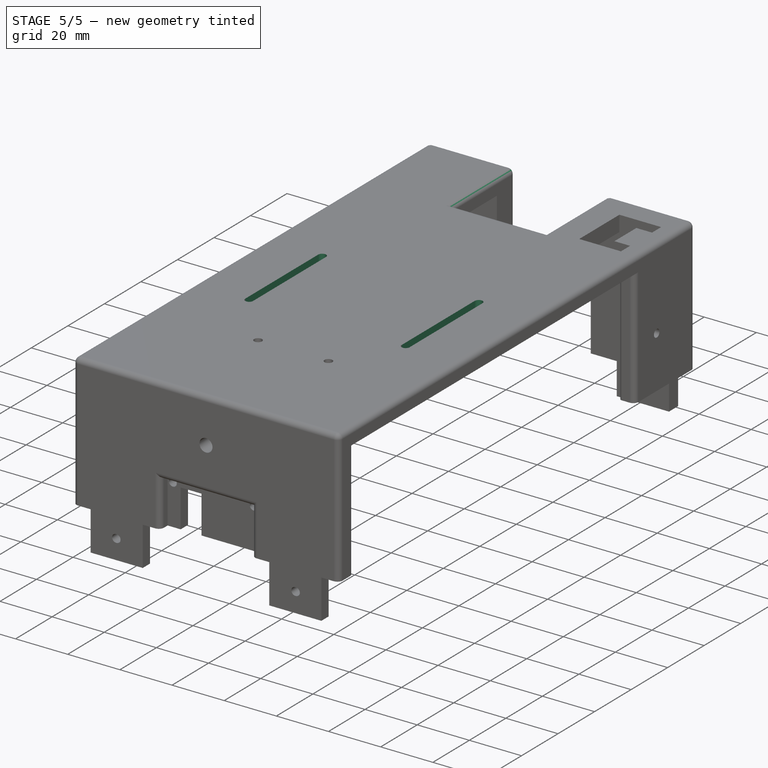
[diagram: stage 5 of 5 — iso view after this stage's code; geometry added in this stage tinted green]
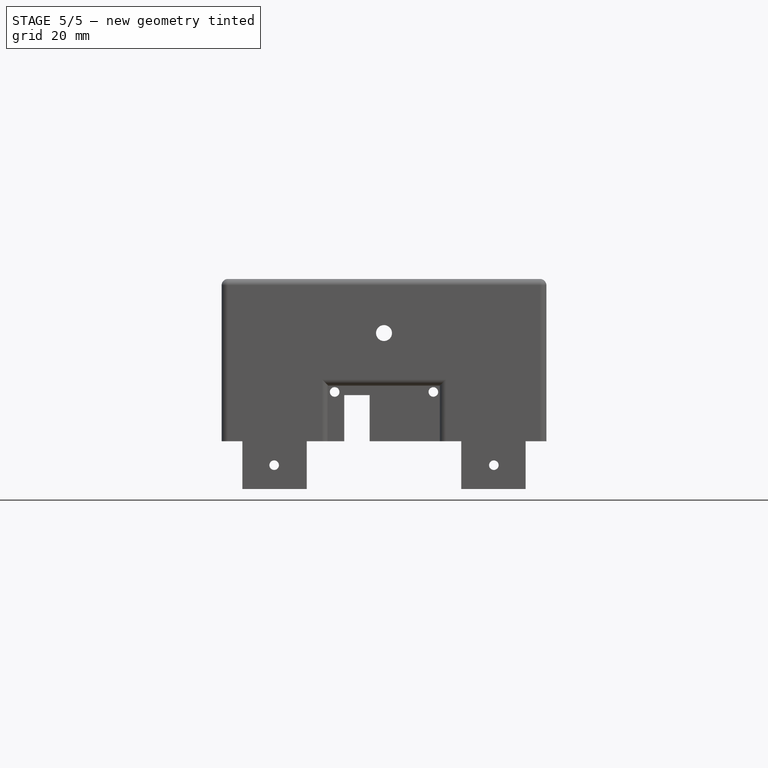
[diagram: stage 5 of 5 — front view after this stage's code; geometry added in this stage tinted green]
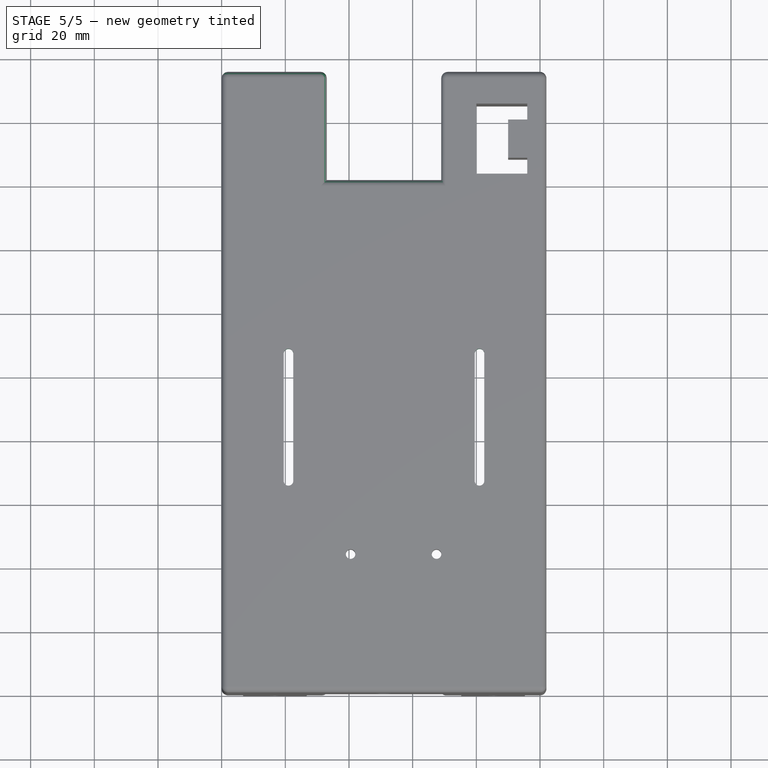
[diagram: stage 5 of 5 — top view after this stage's code; geometry added in this stage tinted green]
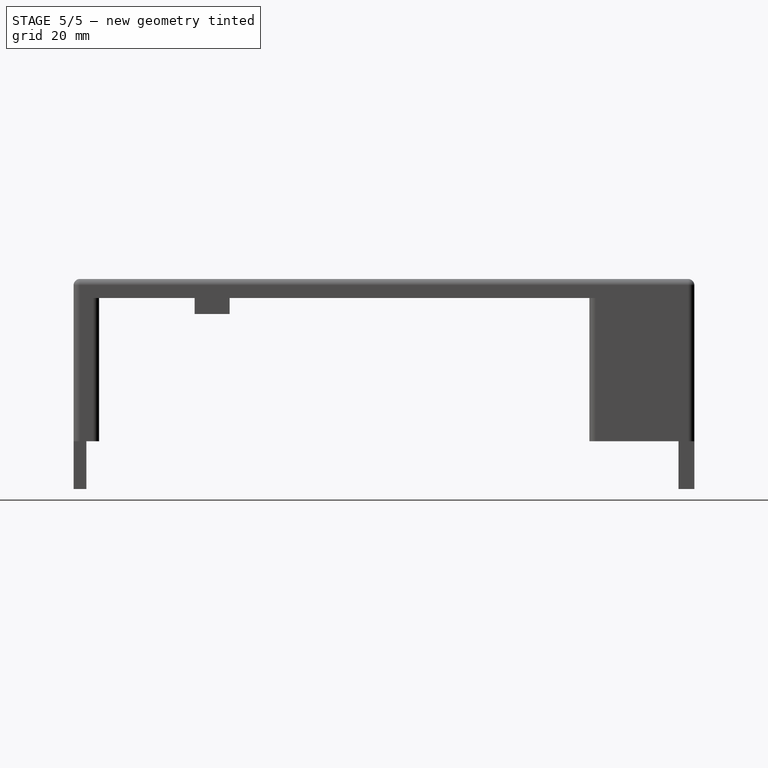
[diagram: stage 5 of 5 — right view after this stage's code; geometry added in this stage tinted green]
FEATURE [PartDesign::Fillet] Fillet009
  Base = -> Fillet008 [Edge10]
  BaseFeature = -> Fillet008
  Radius = 2
  SupportTransform = false
  UseAllEdges = false
FEATURE [PartDesign::Fillet] Fillet010
  Base = -> Fillet009 [Edge47]
  BaseFeature = -> Fillet009
  Radius = 2
  SupportTransform = false
  UseAllEdges = false
FEATURE [PartDesign::Fillet] Fillet011
  Base = -> Fillet010 [Edge16]
  BaseFeature = -> Fillet010
  Radius = 1.5
  SupportTransform = false
  UseAllEdges = false
FEATURE [PartDesign::Fillet] Fillet012
  Base = -> Fillet011 [Edge184,Edge201]
  BaseFeature = -> Fillet011
  Radius = 2
  SupportTransform = false
  UseAllEdges = false
FEATURE [PartDesign::Fillet] Fillet013
  Base = -> Fillet012 [Edge173,Edge232]
  BaseFeature = -> Fillet012
  Radius = 2
  SupportTransform = false
  UseAllEdges = false
FEATURE [Sketcher::SketchObject] Sketch019
  ExternalGeometry = -> [Fillet013]
  FullyConstrained = true
  MapMode = 5
  Placement = pos=(0,0,6) rot=(0,0,1;0rad)
  Support = -> [Fillet013]
  sketch-geometry (8):
    g0: ArcOfCircle CenterX=21 CenterY=106.5 CenterZ=0 NormalX=0 NormalY=0 NormalZ=1 AngleXU=0 Radius=1.5 StartAngle=-1.8e-15 EndAngle=3.14159
    g1: ArcOfCircle CenterX=21 CenterY=66.5 CenterZ=0 NormalX=0 NormalY=0 NormalZ=1 AngleXU=0 Radius=1.5 StartAngle=3.14159 EndAngle=6.28319
    g2: LineSegment StartX=19.5 StartY=106.5 StartZ=0 EndX=19.5 EndY=66.5 EndZ=0
    g3: LineSegment StartX=22.5 StartY=66.5 StartZ=0 EndX=22.5 EndY=106.5 EndZ=0
    g4: ArcOfCircle CenterX=81 CenterY=106.5 CenterZ=0 NormalX=0 NormalY=0 NormalZ=1 AngleXU=0 Radius=1.5 StartAngle=-4.4e-15 EndAngle=3.14159
    g5: ArcOfCircle CenterX=81 CenterY=66.5 CenterZ=0 NormalX=0 NormalY=0 NormalZ=1 AngleXU=0 Radius=1.5 StartAngle=3.14159 EndAngle=6.28319
    g6: LineSegment StartX=79.5 StartY=106.5 StartZ=0 EndX=79.5 EndY=66.5 EndZ=0
    g7: LineSegment StartX=82.5 StartY=66.5 StartZ=0 EndX=82.5 EndY=106.5 EndZ=0
  constraints (18):
    c: Tangent(g0,g2) = -1.5708
    c: Tangent(g2,g1) = -1.5708
    c: Tangent(g1,g3) = -1.5708
    c: Tangent(g3,g0) = -1.5708
    c: Equal(g0,g1)
    c: Vertical(g2)
    c: Tangent(g4,g6) = -1.5708
    c: Tangent(g6,g5) = -1.5708
    c: Tangent(g5,g7) = -1.5708
    c: Tangent(g7,g4) = -1.5708
    c: Equal(g4,g5)
    c: Vertical(g6)
    c: DistanceX(g0,g0) = 3
    c: DistanceX(g4,g4) = 3
    c: Coincident(g1,g-3)
    c: Coincident(g-4,g5)
    c: DistanceY(g3,g3) = 40
    c: Equal(g6,g3)
FEATURE [PartDesign::Pocket] Pocket009
  BaseFeature = -> Fillet013
  Direction = (0,0,-1)
  Length = 6
  Length2 = 5
  Profile = -> Sketch019
  ReferenceAxis = -> Sketch019 [N_Axis]
  Type = 0
FEATURE [PartDesign::Body] Body
  Group = -> [Sketch,Pad,Sketch001,Pad001,Sketch002,Sketch003,Pocket,Sketch004,Pocket001,Sketch005,Pocket002,Sketch006,Pad002,Sketch007,Pocket003,Sketch008,Pocket004,Sketch009,Pad003,Sketch010,Pocket005,Sketch011,Pad004,Sketch012,Pad005,Sketch013,Pad006,Sketch014,Pocket006,Sketch015,Pad007,Sketch016,Pocket007,Sketch018,Pocket008,Fillet,Fillet001,Fillet002,Fillet003,Fillet004,Fillet005,Fillet006,Fillet007,+8 more]
  Origin = -> Origin
  Tip = -> Pocket009
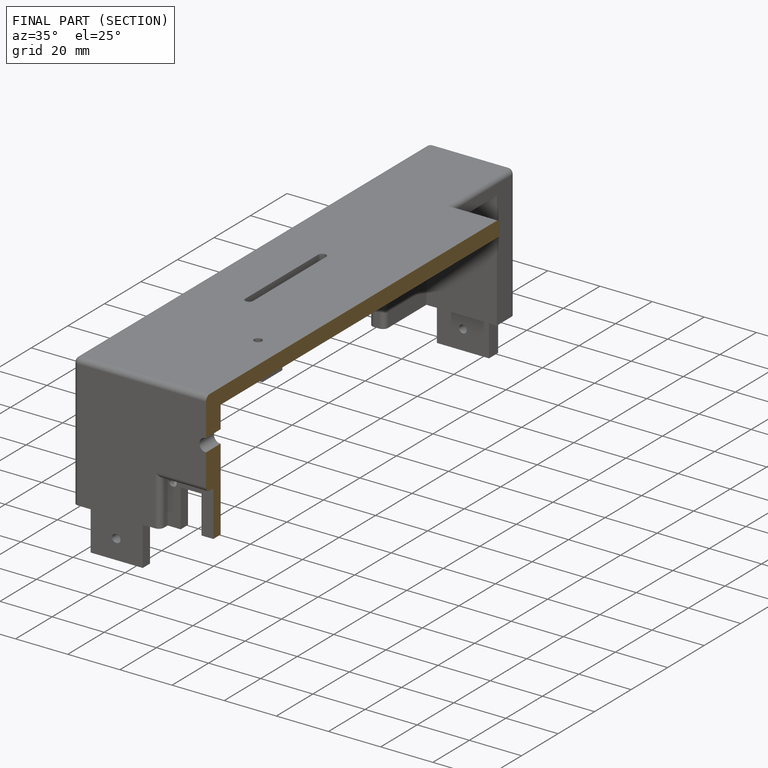
[diagram: finished part — half-section view (interior)]
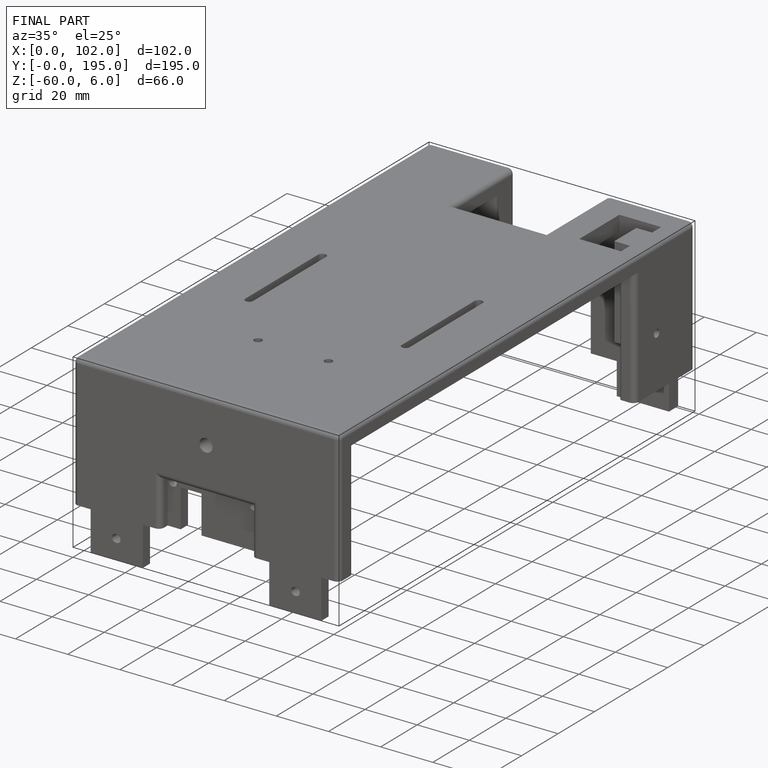
[diagram: finished part — iso view with bounding-box wireframe]
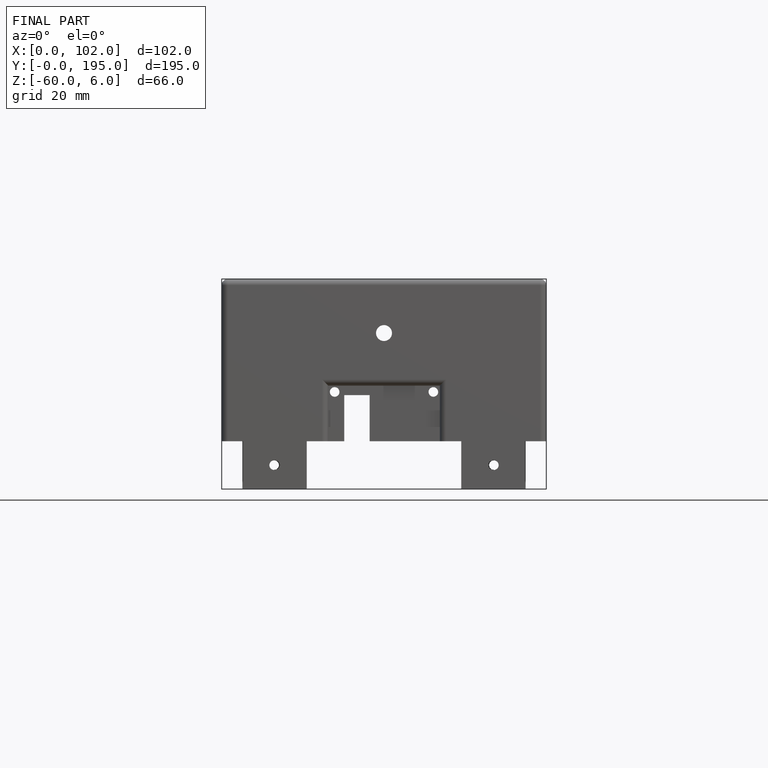
[diagram: finished part — front view with bounding-box wireframe]
